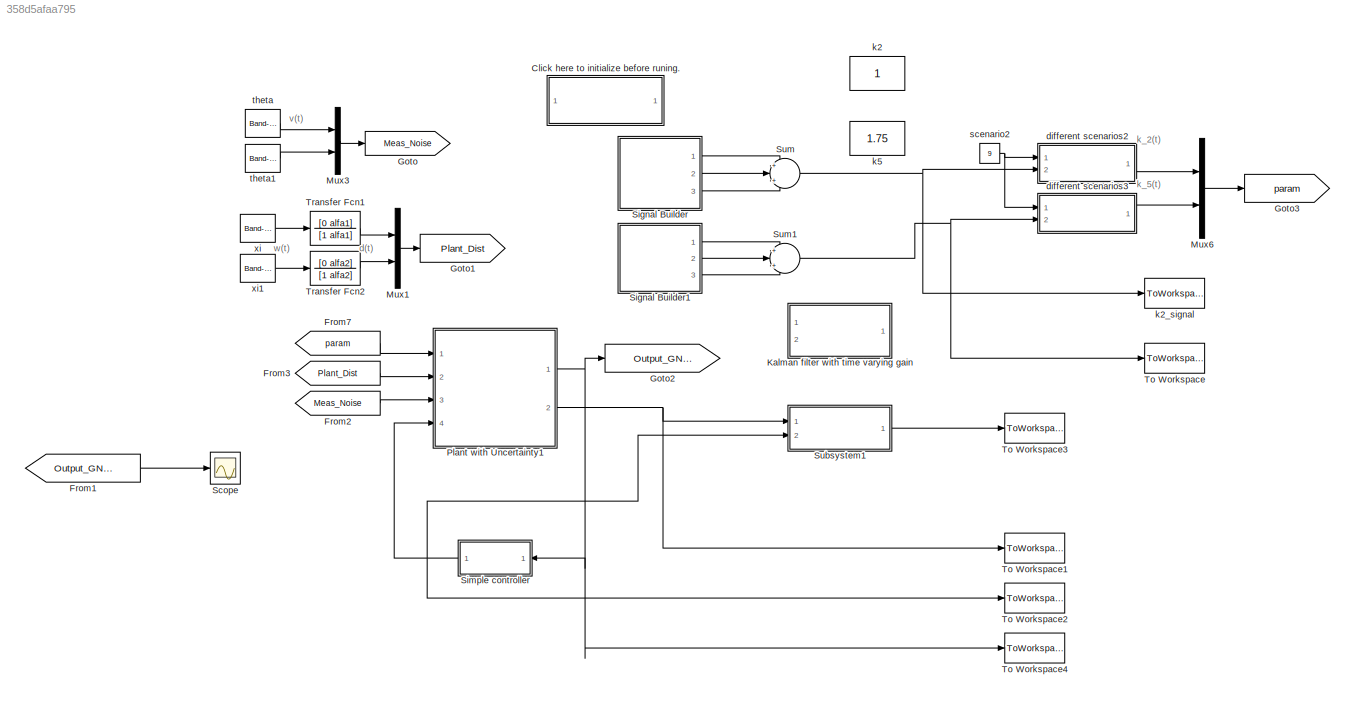
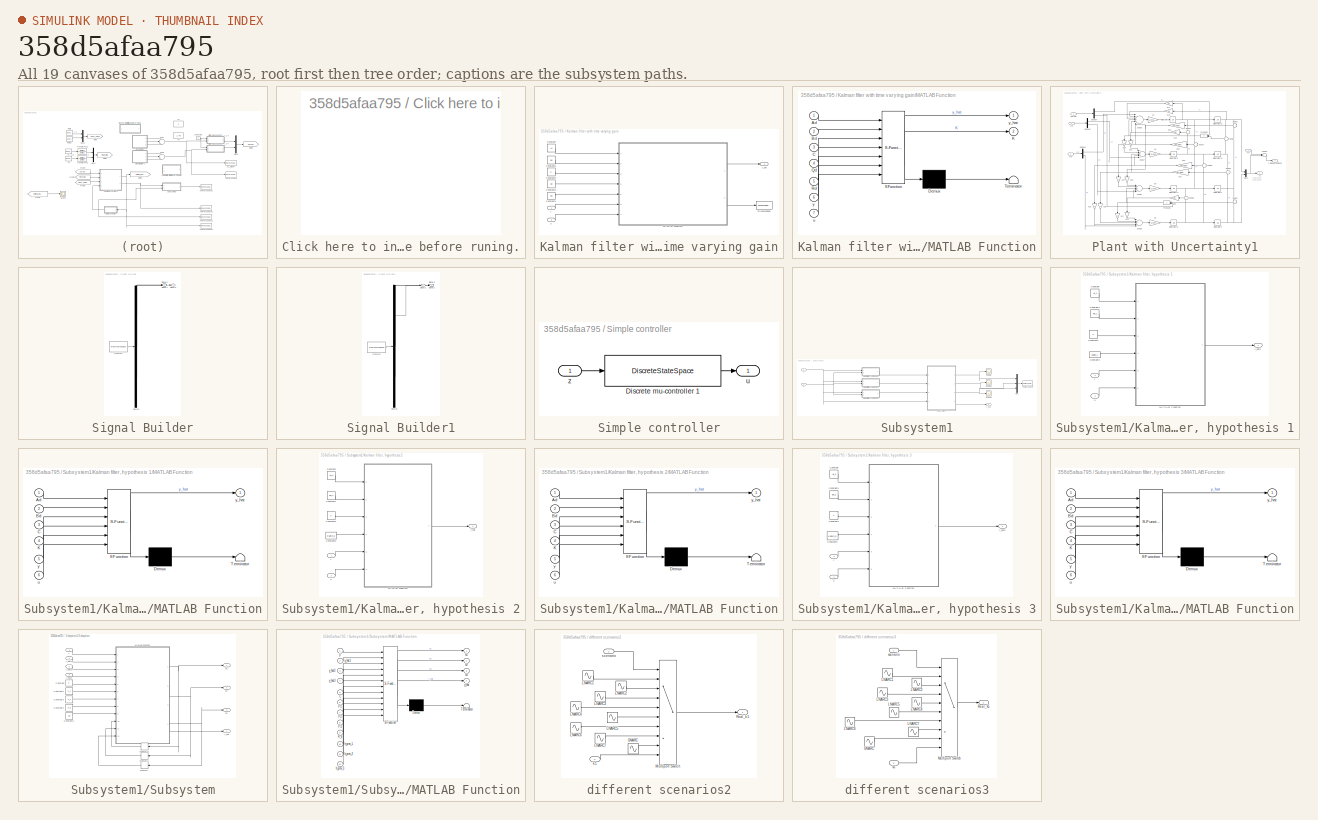
[diagram: thumbnail index - all 19 canvases of the model, root first then tree order]
MODEL slx_358d5afaa795
KIND model
CONFIG AbsTol = auto
CONFIG EnableMultiTasking = on
CONFIG FixedStep = Ts
CONFIG MaxStep = auto
CONFIG MinStep = auto
CONFIG RelTol = 1e-3
CONFIG SampleTimeConstraint = Unconstrained
CONFIG Solver = ode45
CONFIG SolverName = ode45
CONFIG StartTime = 0.0
CONFIG StopTime = 300
BLOCK [SubSystem] Click here to initialize before runing.
  OpenFcn = start_up
  Ports = []
  RequestExecContextInheritance = off
BLOCK [From] From1
  GotoTag = Output_GNARC
BLOCK [From] From2
  GotoTag = Meas_Noise
BLOCK [From] From3
  GotoTag = Plant_Dist
BLOCK [From] From7
  GotoTag = param
BLOCK [Goto] Goto
  GotoTag = Meas_Noise
BLOCK [Goto] Goto1
  GotoTag = Plant_Dist
BLOCK [Goto] Goto2
  GotoTag = Output_GNARC
BLOCK [Goto] Goto3
  GotoTag = param
BLOCK [SubSystem] Kalman filter with time varying gain
  Commented = on
  Ports = [2, 1]
  RequestExecContextInheritance = off
BLOCK [Constant] Kalman filter with time varying gain/Constant
  Value = Ad
BLOCK [Constant] Kalman filter with time varying gain/Constant1
  Value = Bd
BLOCK [Constant] Kalman filter with time varying gain/Constant2
  Value = C
BLOCK [Constant] Kalman filter with time varying gain/Constant3
  Value = Qd
BLOCK [Constant] Kalman filter with time varying gain/Constant4
  Value = Rd
BLOCK [SubSystem] Kalman filter with time varying gain/MATLAB Function
  ErrorFcn = Stateflow.Translate.translate
  PermitHierarchicalResolution = ExplicitOnly
  Ports = [7, 2]
  RequestExecContextInheritance = off
  SFBlockType = MATLAB Function
  SystemSampleTime = Ts
  TreatAsAtomicUnit = on
BLOCK [Demux] Kalman filter with time varying gain/MATLAB Function/ Demux 
  Outputs = 1
  Ports = [1, 1]
BLOCK [S-Function] Kalman filter with time varying gain/MATLAB Function/ SFunction 
  EnableBusSupport = off
  FunctionName = sf_sfun
  PortCounts = [7 3]
  Ports = [7, 3]
  SFcnIsStateOwnerBlock = off
  SFunctionDeploymentMode = off
  Tag = Stateflow S-Function 3
BLOCK [Terminator] Kalman filter with time varying gain/MATLAB Function/ Terminator 
BLOCK [Inport] Kalman filter with time varying gain/MATLAB Function/Ad
  IconDisplay = Port number
BLOCK [Inport] Kalman filter with time varying gain/MATLAB Function/Bd
  IconDisplay = Port number
  Port = 2
BLOCK [Inport] Kalman filter with time varying gain/MATLAB Function/C
  IconDisplay = Port number
  Port = 3
BLOCK [Outport] Kalman filter with time varying gain/MATLAB Function/K
  IconDisplay = Port number
  Port = 2
  VectorParamsAs1DForOutWhenUnconnected = off
BLOCK [Inport] Kalman filter with time varying gain/MATLAB Function/Qd
  IconDisplay = Port number
  Port = 4
BLOCK [Inport] Kalman filter with time varying gain/MATLAB Function/Rd
  IconDisplay = Port number
  Port = 5
BLOCK [Inport] Kalman filter with time varying gain/MATLAB Function/u
  IconDisplay = Port number
  Port = 7
BLOCK [Inport] Kalman filter with time varying gain/MATLAB Function/y
  IconDisplay = Port number
  Port = 6
BLOCK [Outport] Kalman filter with time varying gain/MATLAB Function/y_hat
  IconDisplay = Port number
  VectorParamsAs1DForOutWhenUnconnected = off
BLOCK [ToWorkspace] Kalman filter with time varying gain/To Workspace
  FixptAsFi = on
  MaxDataPoints = inf
  Ports = [1]
  SampleTime = -1
  SaveFormat = Timeseries
  VariableName = Kgain
BLOCK [Inport] Kalman filter with time varying gain/u
  IconDisplay = Port number
  Port = 2
BLOCK [Inport] Kalman filter with time varying gain/y
  IconDisplay = Port number
BLOCK [Outport] Kalman filter with time varying gain/y_hat
  IconDisplay = Port number
  VectorParamsAs1DForOutWhenUnconnected = off
BLOCK [Mux] Mux1
  DisplayOption = bar
  Inputs = 2
  Ports = [2, 1]
BLOCK [Mux] Mux3
  DisplayOption = bar
  Inputs = 2
  Ports = [2, 1]
BLOCK [Mux] Mux6
  DisplayOption = bar
  Inputs = 2
  Ports = [2, 1]
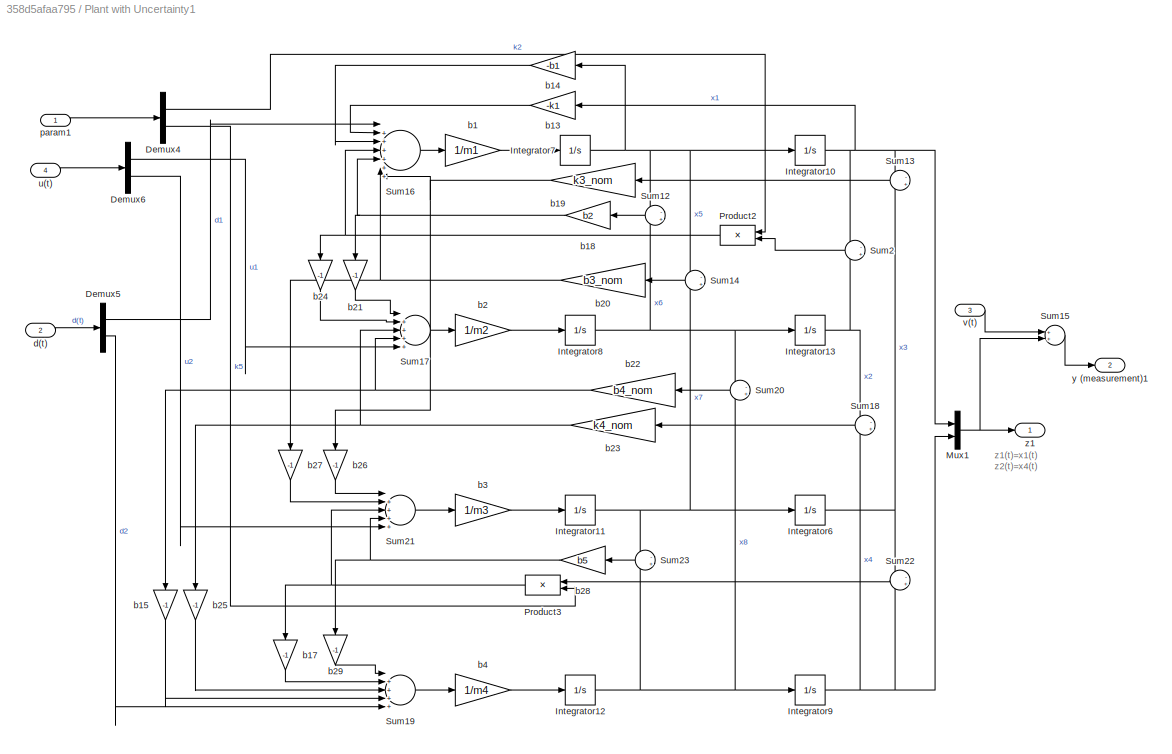
BLOCK [SubSystem] Plant with Uncertainty1
  Ports = [4, 2]
  RequestExecContextInheritance = off
BLOCK [Demux] Plant with Uncertainty1/Demux4
  DisplayOption = bar
  Outputs = 2
  Ports = [1, 2]
BLOCK [Demux] Plant with Uncertainty1/Demux5
  DisplayOption = bar
  Outputs = 2
  Ports = [1, 2]
BLOCK [Demux] Plant with Uncertainty1/Demux6
  DisplayOption = bar
  Outputs = 2
  Ports = [1, 2]
BLOCK [Integrator] Plant with Uncertainty1/Integrator10
  Ports = [1, 1]
BLOCK [Integrator] Plant with Uncertainty1/Integrator11
  Ports = [1, 1]
BLOCK [Integrator] Plant with Uncertainty1/Integrator12
  Ports = [1, 1]
BLOCK [Integrator] Plant with Uncertainty1/Integrator13
  Ports = [1, 1]
BLOCK [Integrator] Plant with Uncertainty1/Integrator6
  Ports = [1, 1]
BLOCK [Integrator] Plant with Uncertainty1/Integrator7
  Ports = [1, 1]
BLOCK [Integrator] Plant with Uncertainty1/Integrator8
  Ports = [1, 1]
BLOCK [Integrator] Plant with Uncertainty1/Integrator9
  Ports = [1, 1]
BLOCK [Mux] Plant with Uncertainty1/Mux1
  DisplayOption = bar
  Inputs = 2
  Ports = [2, 1]
BLOCK [Product] Plant with Uncertainty1/Product2
  Ports = [2, 1]
  RndMeth = Floor
BLOCK [Product] Plant with Uncertainty1/Product3
  Ports = [2, 1]
  RndMeth = Floor
BLOCK [Sum] Plant with Uncertainty1/Sum12
  IconShape = round
  Inputs = -+
  Ports = [2, 1]
BLOCK [Sum] Plant with Uncertainty1/Sum13
  IconShape = round
  Inputs = -+
  Ports = [2, 1]
BLOCK [Sum] Plant with Uncertainty1/Sum14
  IconShape = round
  Inputs = -+
  Ports = [2, 1]
BLOCK [Sum] Plant with Uncertainty1/Sum15
  Ports = [2, 1]
BLOCK [Sum] Plant with Uncertainty1/Sum16
  IconShape = round
  Inputs = |+++++++
  Ports = [7, 1]
BLOCK [Sum] Plant with Uncertainty1/Sum17
  IconShape = round
  Inputs = |+++++
  Ports = [5, 1]
BLOCK [Sum] Plant with Uncertainty1/Sum18
  IconShape = round
  Inputs = -+
  Ports = [2, 1]
BLOCK [Sum] Plant with Uncertainty1/Sum19
  IconShape = round
  Inputs = |+++++
  Ports = [5, 1]
BLOCK [Sum] Plant with Uncertainty1/Sum2
  IconShape = round
  Inputs = -+
  Ports = [2, 1]
BLOCK [Sum] Plant with Uncertainty1/Sum20
  IconShape = round
  Inputs = -+
  Ports = [2, 1]
BLOCK [Sum] Plant with Uncertainty1/Sum21
  IconShape = round
  Inputs = |+++++
  Ports = [5, 1]
BLOCK [Sum] Plant with Uncertainty1/Sum22
  IconShape = round
  Inputs = -+
  Ports = [2, 1]
BLOCK [Sum] Plant with Uncertainty1/Sum23
  IconShape = round
  Inputs = -+
  Ports = [2, 1]
BLOCK [Gain] Plant with Uncertainty1/b1
  Gain = 1/m1
BLOCK [Gain] Plant with Uncertainty1/b13
  Gain = -k1
BLOCK [Gain] Plant with Uncertainty1/b14
  Gain = -b1
BLOCK [Gain] Plant with Uncertainty1/b15
  Gain = -1
BLOCK [Gain] Plant with Uncertainty1/b17
  Gain = -1
BLOCK [Gain] Plant with Uncertainty1/b18
  Gain = b2
BLOCK [Gain] Plant with Uncertainty1/b19
  Gain = k3_nom
BLOCK [Gain] Plant with Uncertainty1/b2
  Gain = 1/m2
BLOCK [Gain] Plant with Uncertainty1/b20
  Gain = b3_nom
BLOCK [Gain] Plant with Uncertainty1/b21
  Gain = -1
BLOCK [Gain] Plant with Uncertainty1/b22
  Gain = b4_nom
BLOCK [Gain] Plant with Uncertainty1/b23
  Gain = k4_nom
BLOCK [Gain] Plant with Uncertainty1/b24
  Gain = -1
BLOCK [Gain] Plant with Uncertainty1/b25
  Gain = -1
BLOCK [Gain] Plant with Uncertainty1/b26
  Gain = -1
BLOCK [Gain] Plant with Uncertainty1/b27
  Gain = -1
BLOCK [Gain] Plant with Uncertainty1/b28
  Gain = b5
BLOCK [Gain] Plant with Uncertainty1/b29
  Gain = -1
BLOCK [Gain] Plant with Uncertainty1/b3
  Gain = 1/m3
BLOCK [Gain] Plant with Uncertainty1/b4
  Gain = 1/m4
BLOCK [Inport] Plant with Uncertainty1/d(t)
  IconDisplay = Port number
  Port = 2
BLOCK [Inport] Plant with Uncertainty1/param1
  IconDisplay = Port number
BLOCK [Inport] Plant with Uncertainty1/u(t)
  IconDisplay = Port number
  Port = 4
BLOCK [Inport] Plant with Uncertainty1/v(t)
  IconDisplay = Port number
  Port = 3
BLOCK [Outport] Plant with Uncertainty1/y (measurement)1
  IconDisplay = Port number
  Port = 2
  VectorParamsAs1DForOutWhenUnconnected = off
BLOCK [Outport] Plant with Uncertainty1/z1
  IconDisplay = Port number
  VectorParamsAs1DForOutWhenUnconnected = off
BLOCK [Scope] Scope
  Floating = off
  NumInputPorts = 1
  Ports = [1]
  ScopeSpecificationString = Simulink.scopes.TimeScopeBlockCfg('CurrentConfiguration', extmgr.ConfigurationSet(extmgr.Configuration('Core','General UI',true),extmgr.Configuration('Core','Source UI',true),extmgr.Configuration('Sources','WiredSimulink',true),extmgr.Configuration('Visuals','Time Domain',true,'SerializedDisplays',{struct('MinYLimReal','-0.94874','MaxYLimReal','0.93385','YLabelReal','','MinYLimMag','0.00000','MaxY...<+1408ch>
BLOCK [SubSystem] Signal Builder
  ClipboardFcn = sigbuilder_block('clipboard');
  CloseFcn = sigbuilder_block('close');
  ContinueFcn = sigbuilder_block('continue');
  CopyFcn = sigbuilder_block('copy');
  DeleteFcn = sigbuilder_block('delete');
  LoadFcn = sigbuilder_block('load');
  MaskHideContents = on
  ModelCloseFcn = sigbuilder_block('modelClose');
  NameChangeFcn = sigbuilder_block('namechange');
  OpenFcn = sigbuilder_block('open',[325.2 97.2 550.8 400.2 ]);
  PauseFcn = sigbuilder_block('pause');
  Ports = [0, 3]
  PreSaveFcn = sigbuilder_block('preSave');
  RequestExecContextInheritance = off
  StartFcn = sigbuilder_block('start');
  StopFcn = sigbuilder_block('stop');
  Tag = STV Subsys
BLOCK [Demux] Signal Builder/Demux
  Outputs = 3
  Ports = [1, 3]
  Tag = STV Demux
BLOCK [FromWorkspace] Signal Builder/FromWs
  SampleTime = 0
  Tag = STV FromWs
  VariableName = tuvar
  ZeroCross = on
BLOCK [Outport] Signal Builder/Signal 1
  IconDisplay = Port number
  Tag = STV Outport
  VectorParamsAs1DForOutWhenUnconnected = off
BLOCK [Outport] Signal Builder/Signal 2
  IconDisplay = Port number
  Port = 2
  Tag = STV Outport
  VectorParamsAs1DForOutWhenUnconnected = off
BLOCK [Outport] Signal Builder/Signal 3
  IconDisplay = Port number
  Port = 3
  Tag = STV Outport
  VectorParamsAs1DForOutWhenUnconnected = off
BLOCK [SubSystem] Signal Builder1
  ClipboardFcn = sigbuilder_block('clipboard');
  CloseFcn = sigbuilder_block('close');
  ContinueFcn = sigbuilder_block('continue');
  CopyFcn = sigbuilder_block('copy');
  DeleteFcn = sigbuilder_block('delete');
  LoadFcn = sigbuilder_block('load');
  MaskHideContents = on
  ModelCloseFcn = sigbuilder_block('modelClose');
  NameChangeFcn = sigbuilder_block('namechange');
  OpenFcn = sigbuilder_block('open',[437.6 199.2 550.4 400 ]);
  PauseFcn = sigbuilder_block('pause');
  Ports = [0, 3]
  PreSaveFcn = sigbuilder_block('preSave');
  RequestExecContextInheritance = off
  StartFcn = sigbuilder_block('start');
  StopFcn = sigbuilder_block('stop');
  Tag = STV Subsys
BLOCK [Demux] Signal Builder1/Demux
  Outputs = 3
  Ports = [1, 3]
  Tag = STV Demux
BLOCK [FromWorkspace] Signal Builder1/FromWs
  SampleTime = 0
  Tag = STV FromWs
  VariableName = tuvar
  ZeroCross = on
BLOCK [Outport] Signal Builder1/Signal 1
  IconDisplay = Port number
  Tag = STV Outport
  VectorParamsAs1DForOutWhenUnconnected = off
BLOCK [Outport] Signal Builder1/Signal 2
  IconDisplay = Port number
  Port = 2
  Tag = STV Outport
  VectorParamsAs1DForOutWhenUnconnected = off
BLOCK [Outport] Signal Builder1/Signal 3
  IconDisplay = Port number
  Port = 3
  Tag = STV Outport
  VectorParamsAs1DForOutWhenUnconnected = off
BLOCK [SubSystem] Simple controller
  Ports = [1, 1]
  RequestExecContextInheritance = off
BLOCK [DiscreteStateSpace] Simple controller/Discrete mu-controller 1
  A = A_D_Re_GNARC
  B = B_D_Re_GNARC
  C = C_D_Re_GNARC
  D = D_D_Re_GNARC
  Description = disp('sss')
  SampleTime = Ts
BLOCK [Outport] Simple controller/u
  IconDisplay = Port number
  VectorParamsAs1DForOutWhenUnconnected = off
BLOCK [Inport] Simple controller/z
  IconDisplay = Port number
BLOCK [SubSystem] Subsystem1
  Ports = [2, 1]
  RequestExecContextInheritance = off
BLOCK [SubSystem] Subsystem1/Kalman filter, hypothesis 1
  Ports = [2, 1]
  RequestExecContextInheritance = off
BLOCK [Constant] Subsystem1/Kalman filter, hypothesis 1/Constant
  Value = Ad_1
BLOCK [Constant] Subsystem1/Kalman filter, hypothesis 1/Constant1
  Value = Bd_1
BLOCK [Constant] Subsystem1/Kalman filter, hypothesis 1/Constant2
  Value = C
BLOCK [Constant] Subsystem1/Kalman filter, hypothesis 1/Constant3
  Value = Kgain_1
BLOCK [SubSystem] Subsystem1/Kalman filter, hypothesis 1/MATLAB Function
  ErrorFcn = Stateflow.Translate.translate
  PermitHierarchicalResolution = ExplicitOnly
  Ports = [6, 1]
  RequestExecContextInheritance = off
  SFBlockType = MATLAB Function
  SystemSampleTime = Ts
  TreatAsAtomicUnit = on
BLOCK [Demux] Subsystem1/Kalman filter, hypothesis 1/MATLAB Function/ Demux 
  Outputs = 1
  Ports = [1, 1]
BLOCK [S-Function] Subsystem1/Kalman filter, hypothesis 1/MATLAB Function/ SFunction 
  EnableBusSupport = off
  FunctionName = sf_sfun
  PortCounts = [6 2]
  Ports = [6, 2]
  SFcnIsStateOwnerBlock = off
  SFunctionDeploymentMode = off
  Tag = Stateflow S-Function 8
BLOCK [Terminator] Subsystem1/Kalman filter, hypothesis 1/MATLAB Function/ Terminator 
BLOCK [Inport] Subsystem1/Kalman filter, hypothesis 1/MATLAB Function/Ad
  IconDisplay = Port number
BLOCK [Inport] Subsystem1/Kalman filter, hypothesis 1/MATLAB Function/Bd
  IconDisplay = Port number
  Port = 2
BLOCK [Inport] Subsystem1/Kalman filter, hypothesis 1/MATLAB Function/C
  IconDisplay = Port number
  Port = 3
BLOCK [Inport] Subsystem1/Kalman filter, hypothesis 1/MATLAB Function/K
  IconDisplay = Port number
  Port = 4
BLOCK [Inport] Subsystem1/Kalman filter, hypothesis 1/MATLAB Function/u
  IconDisplay = Port number
  Port = 6
BLOCK [Inport] Subsystem1/Kalman filter, hypothesis 1/MATLAB Function/y
  IconDisplay = Port number
  Port = 5
BLOCK [Outport] Subsystem1/Kalman filter, hypothesis 1/MATLAB Function/y_hat
  IconDisplay = Port number
  VectorParamsAs1DForOutWhenUnconnected = off
BLOCK [Inport] Subsystem1/Kalman filter, hypothesis 1/u
  IconDisplay = Port number
  Port = 2
BLOCK [Inport] Subsystem1/Kalman filter, hypothesis 1/y
  IconDisplay = Port number
BLOCK [Outport] Subsystem1/Kalman filter, hypothesis 1/y_hat1
  IconDisplay = Port number
  VectorParamsAs1DForOutWhenUnconnected = off
BLOCK [SubSystem] Subsystem1/Kalman filter, hypothesis 2
  Ports = [2, 1]
  RequestExecContextInheritance = off
BLOCK [Constant] Subsystem1/Kalman filter, hypothesis 2/Constant
  Value = Ad_2
BLOCK [Constant] Subsystem1/Kalman filter, hypothesis 2/Constant1
  Value = Bd_2
BLOCK [Constant] Subsystem1/Kalman filter, hypothesis 2/Constant2
  Value = C
BLOCK [Constant] Subsystem1/Kalman filter, hypothesis 2/Constant3
  Value = Kgain_2
BLOCK [SubSystem] Subsystem1/Kalman filter, hypothesis 2/MATLAB Function
  ErrorFcn = Stateflow.Translate.translate
  PermitHierarchicalResolution = ExplicitOnly
  Ports = [6, 1]
  RequestExecContextInheritance = off
  SFBlockType = MATLAB Function
  SystemSampleTime = Ts
  TreatAsAtomicUnit = on
BLOCK [Demux] Subsystem1/Kalman filter, hypothesis 2/MATLAB Function/ Demux 
  Outputs = 1
  Ports = [1, 1]
BLOCK [S-Function] Subsystem1/Kalman filter, hypothesis 2/MATLAB Function/ SFunction 
  EnableBusSupport = off
  FunctionName = sf_sfun
  PortCounts = [6 2]
  Ports = [6, 2]
  SFcnIsStateOwnerBlock = off
  SFunctionDeploymentMode = off
  Tag = Stateflow S-Function 7
BLOCK [Terminator] Subsystem1/Kalman filter, hypothesis 2/MATLAB Function/ Terminator 
BLOCK [Inport] Subsystem1/Kalman filter, hypothesis 2/MATLAB Function/Ad
  IconDisplay = Port number
BLOCK [Inport] Subsystem1/Kalman filter, hypothesis 2/MATLAB Function/Bd
  IconDisplay = Port number
  Port = 2
BLOCK [Inport] Subsystem1/Kalman filter, hypothesis 2/MATLAB Function/C
  IconDisplay = Port number
  Port = 3
BLOCK [Inport] Subsystem1/Kalman filter, hypothesis 2/MATLAB Function/K
  IconDisplay = Port number
  Port = 4
BLOCK [Inport] Subsystem1/Kalman filter, hypothesis 2/MATLAB Function/u
  IconDisplay = Port number
  Port = 6
BLOCK [Inport] Subsystem1/Kalman filter, hypothesis 2/MATLAB Function/y
  IconDisplay = Port number
  Port = 5
BLOCK [Outport] Subsystem1/Kalman filter, hypothesis 2/MATLAB Function/y_hat
  IconDisplay = Port number
  VectorParamsAs1DForOutWhenUnconnected = off
BLOCK [Inport] Subsystem1/Kalman filter, hypothesis 2/u
  IconDisplay = Port number
  Port = 2
BLOCK [Inport] Subsystem1/Kalman filter, hypothesis 2/y
  IconDisplay = Port number
BLOCK [Outport] Subsystem1/Kalman filter, hypothesis 2/y_hat
  IconDisplay = Port number
  VectorParamsAs1DForOutWhenUnconnected = off
BLOCK [SubSystem] Subsystem1/Kalman filter, hypothesis 3
  Ports = [2, 1]
  RequestExecContextInheritance = off
BLOCK [Constant] Subsystem1/Kalman filter, hypothesis 3/Constant
  Value = Ad_3
BLOCK [Constant] Subsystem1/Kalman filter, hypothesis 3/Constant1
  Value = Bd_3
BLOCK [Constant] Subsystem1/Kalman filter, hypothesis 3/Constant2
  Value = C
BLOCK [Constant] Subsystem1/Kalman filter, hypothesis 3/Constant3
  Value = Kgain_3
BLOCK [SubSystem] Subsystem1/Kalman filter, hypothesis 3/MATLAB Function
  ErrorFcn = Stateflow.Translate.translate
  PermitHierarchicalResolution = ExplicitOnly
  Ports = [6, 1]
  RequestExecContextInheritance = off
  SFBlockType = MATLAB Function
  SystemSampleTime = Ts
  TreatAsAtomicUnit = on
BLOCK [Demux] Subsystem1/Kalman filter, hypothesis 3/MATLAB Function/ Demux 
  Outputs = 1
  Ports = [1, 1]
BLOCK [S-Function] Subsystem1/Kalman filter, hypothesis 3/MATLAB Function/ SFunction 
  EnableBusSupport = off
  FunctionName = sf_sfun
  PortCounts = [6 2]
  Ports = [6, 2]
  SFcnIsStateOwnerBlock = off
  SFunctionDeploymentMode = off
  Tag = Stateflow S-Function 10
BLOCK [Terminator] Subsystem1/Kalman filter, hypothesis 3/MATLAB Function/ Terminator 
BLOCK [Inport] Subsystem1/Kalman filter, hypothesis 3/MATLAB Function/Ad
  IconDisplay = Port number
BLOCK [Inport] Subsystem1/Kalman filter, hypothesis 3/MATLAB Function/Bd
  IconDisplay = Port number
  Port = 2
BLOCK [Inport] Subsystem1/Kalman filter, hypothesis 3/MATLAB Function/C
  IconDisplay = Port number
  Port = 3
BLOCK [Inport] Subsystem1/Kalman filter, hypothesis 3/MATLAB Function/K
  IconDisplay = Port number
  Port = 4
BLOCK [Inport] Subsystem1/Kalman filter, hypothesis 3/MATLAB Function/u
  IconDisplay = Port number
  Port = 6
BLOCK [Inport] Subsystem1/Kalman filter, hypothesis 3/MATLAB Function/y
  IconDisplay = Port number
  Port = 5
BLOCK [Outport] Subsystem1/Kalman filter, hypothesis 3/MATLAB Function/y_hat
  IconDisplay = Port number
  VectorParamsAs1DForOutWhenUnconnected = off
BLOCK [Inport] Subsystem1/Kalman filter, hypothesis 3/u
  IconDisplay = Port number
  Port = 2
BLOCK [Inport] Subsystem1/Kalman filter, hypothesis 3/y
  IconDisplay = Port number
BLOCK [Outport] Subsystem1/Kalman filter, hypothesis 3/y_hat3
  IconDisplay = Port number
  VectorParamsAs1DForOutWhenUnconnected = off
BLOCK [Mux] Subsystem1/Mux
  DisplayOption = bar
  Inputs = 3
  Ports = [3, 1]
BLOCK [Scope] Subsystem1/Scope
  Floating = off
  NumInputPorts = 1
  Ports = [1]
  ScopeSpecificationString = Simulink.scopes.TimeScopeBlockCfg('CurrentConfiguration', extmgr.ConfigurationSet(extmgr.Configuration('Core','General UI',true),extmgr.Configuration('Core','Source UI',true),extmgr.Configuration('Sources','WiredSimulink',true,'DataLoggingVariableName','ScopeData1'),extmgr.Configuration('Visuals','Time Domain',true,'SerializedDisplays',{struct('MinYLimReal','0.000001','MaxYLimReal','0.000097','YLa...<+1456ch>
BLOCK [Scope] Subsystem1/Scope1
  Floating = off
  NumInputPorts = 1
  Ports = [1]
  ScopeSpecificationString = Simulink.scopes.TimeScopeBlockCfg('CurrentConfiguration', extmgr.ConfigurationSet(extmgr.Configuration('Core','General UI',true),extmgr.Configuration('Core','Source UI',true),extmgr.Configuration('Sources','WiredSimulink',true,'DataLoggingVariableName','ScopeData2'),extmgr.Configuration('Visuals','Time Domain',true,'SerializedDisplays',{struct('MinYLimReal','0.00074','MaxYLimReal','1.04637','YLabe...<+1448ch>
BLOCK [Scope] Subsystem1/Scope2
  Floating = off
  NumInputPorts = 1
  Ports = [1]
  ScopeSpecificationString = Simulink.scopes.TimeScopeBlockCfg('CurrentConfiguration', extmgr.ConfigurationSet(extmgr.Configuration('Core','General UI',true),extmgr.Configuration('Core','Source UI',true),extmgr.Configuration('Sources','WiredSimulink',true,'DataLoggingVariableName','ScopeData3'),extmgr.Configuration('Visuals','Time Domain',true,'SerializedDisplays',{struct('MinYLimReal','-0.00073','MaxYLimReal','0.00078','YLab...<+1453ch>
BLOCK [SubSystem] Subsystem1/Subsystem
  Ports = [4, 4]
  RequestExecContextInheritance = off
BLOCK [Constant] Subsystem1/Subsystem/Constant
  Value = C
BLOCK [Constant] Subsystem1/Subsystem/Constant1
  Value = Rd
BLOCK [Constant] Subsystem1/Subsystem/Constant2
  Value = P_1
BLOCK [Constant] Subsystem1/Subsystem/Constant3
  Value = P_2
BLOCK [Constant] Subsystem1/Subsystem/Constant4
  Value = P_3
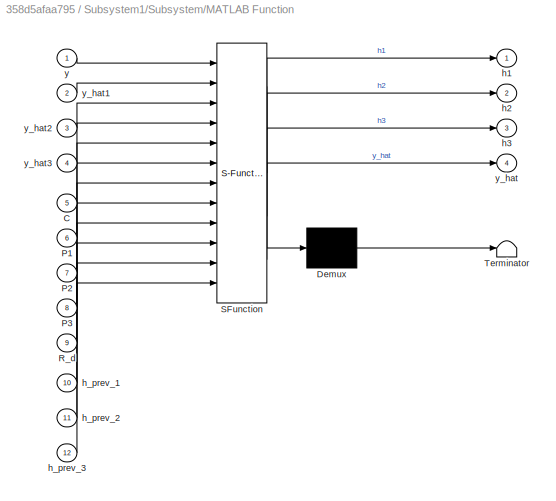
BLOCK [SubSystem] Subsystem1/Subsystem/MATLAB Function
  ErrorFcn = Stateflow.Translate.translate
  PermitHierarchicalResolution = ExplicitOnly
  Ports = [12, 4]
  RequestExecContextInheritance = off
  SFBlockType = MATLAB Function
  SystemSampleTime = Ts
  TreatAsAtomicUnit = on
BLOCK [Demux] Subsystem1/Subsystem/MATLAB Function/ Demux 
  Outputs = 1
  Ports = [1, 1]
BLOCK [S-Function] Subsystem1/Subsystem/MATLAB Function/ SFunction 
  EnableBusSupport = off
  FunctionName = sf_sfun
  PortCounts = [12 5]
  Ports = [12, 5]
  SFcnIsStateOwnerBlock = off
  SFunctionDeploymentMode = off
  Tag = Stateflow S-Function 11
BLOCK [Terminator] Subsystem1/Subsystem/MATLAB Function/ Terminator 
BLOCK [Inport] Subsystem1/Subsystem/MATLAB Function/C
  IconDisplay = Port number
  Port = 5
BLOCK [Inport] Subsystem1/Subsystem/MATLAB Function/P1
  IconDisplay = Port number
  Port = 6
BLOCK [Inport] Subsystem1/Subsystem/MATLAB Function/P2
  IconDisplay = Port number
  Port = 7
BLOCK [Inport] Subsystem1/Subsystem/MATLAB Function/P3
  IconDisplay = Port number
  Port = 8
BLOCK [Inport] Subsystem1/Subsystem/MATLAB Function/R_d
  IconDisplay = Port number
  Port = 9
BLOCK [Outport] Subsystem1/Subsystem/MATLAB Function/h1
  IconDisplay = Port number
BLOCK [Outport] Subsystem1/Subsystem/MATLAB Function/h2
  IconDisplay = Port number
  Port = 2
  VectorParamsAs1DForOutWhenUnconnected = off
BLOCK [Outport] Subsystem1/Subsystem/MATLAB Function/h3
  IconDisplay = Port number
  Port = 3
  VectorParamsAs1DForOutWhenUnconnected = off
BLOCK [Inport] Subsystem1/Subsystem/MATLAB Function/h_prev_1
  IconDisplay = Port number
  Port = 10
BLOCK [Inport] Subsystem1/Subsystem/MATLAB Function/h_prev_2
  IconDisplay = Port number
  Port = 11
BLOCK [Inport] Subsystem1/Subsystem/MATLAB Function/h_prev_3
  IconDisplay = Port number
  Port = 12
BLOCK [Inport] Subsystem1/Subsystem/MATLAB Function/y
  IconDisplay = Port number
BLOCK [Outport] Subsystem1/Subsystem/MATLAB Function/y_hat
  IconDisplay = Port number
  Port = 4
  VectorParamsAs1DForOutWhenUnconnected = off
BLOCK [Inport] Subsystem1/Subsystem/MATLAB Function/y_hat1
  IconDisplay = Port number
  Port = 2
BLOCK [Inport] Subsystem1/Subsystem/MATLAB Function/y_hat2
  IconDisplay = Port number
  Port = 3
BLOCK [Inport] Subsystem1/Subsystem/MATLAB Function/y_hat3
  IconDisplay = Port number
  Port = 4
BLOCK [Memory] Subsystem1/Subsystem/Memory
  InheritSampleTime = on
  InitialCondition = 1/3
BLOCK [Memory] Subsystem1/Subsystem/Memory1
  InheritSampleTime = on
  InitialCondition = 1/3
BLOCK [Memory] Subsystem1/Subsystem/Memory2
  InheritSampleTime = on
  InitialCondition = 1/3
BLOCK [Outport] Subsystem1/Subsystem/h1
  IconDisplay = Port number
BLOCK [Outport] Subsystem1/Subsystem/h2
  IconDisplay = Port number
  Port = 2
BLOCK [Outport] Subsystem1/Subsystem/h3
  IconDisplay = Port number
  Port = 3
BLOCK [Inport] Subsystem1/Subsystem/y
  IconDisplay = Port number
  Port = 4
BLOCK [Outport] Subsystem1/Subsystem/y_hat
  IconDisplay = Port number
  Port = 4
  VectorParamsAs1DForOutWhenUnconnected = off
BLOCK [Inport] Subsystem1/Subsystem/y_hat1
  IconDisplay = Port number
BLOCK [Inport] Subsystem1/Subsystem/y_hat2
  IconDisplay = Port number
  Port = 2
BLOCK [Inport] Subsystem1/Subsystem/y_hat3
  IconDisplay = Port number
  Port = 3
BLOCK [ToWorkspace] Subsystem1/To Workspace
  FixptAsFi = on
  MaxDataPoints = inf
  Ports = [1]
  SampleTime = -1
  SaveFormat = Timeseries
  VariableName = hyps
BLOCK [Inport] Subsystem1/u
  IconDisplay = Port number
  Port = 2
BLOCK [Inport] Subsystem1/y
  IconDisplay = Port number
BLOCK [Outport] Subsystem1/y_hat
  IconDisplay = Port number
  VectorParamsAs1DForOutWhenUnconnected = off
BLOCK [Sum] Sum
  IconShape = round
  InputSameDT = off
  Inputs = +|+|+
  OutDataTypeStr = Inherit: Inherit via internal rule
  Ports = [3, 1]
  SaturateOnIntegerOverflow = off
BLOCK [Sum] Sum1
  IconShape = round
  InputSameDT = off
  Inputs = +|+|+
  OutDataTypeStr = Inherit: Inherit via internal rule
  Ports = [3, 1]
  SaturateOnIntegerOverflow = off
BLOCK [ToWorkspace] To Workspace
  FixptAsFi = on
  MaxDataPoints = inf
  Ports = [1]
  SampleTime = -1
  SaveFormat = Timeseries
  VariableName = k5_signal
BLOCK [ToWorkspace] To Workspace1
  FixptAsFi = on
  MaxDataPoints = inf
  Ports = [1]
  SampleTime = Ts
  SaveFormat = Timeseries
  VariableName = measured_y
BLOCK [ToWorkspace] To Workspace2
  FixptAsFi = on
  MaxDataPoints = inf
  Ports = [1]
  SampleTime = -1
  SaveFormat = Timeseries
  VariableName = u_control
BLOCK [ToWorkspace] To Workspace3
  FixptAsFi = on
  MaxDataPoints = inf
  Ports = [1]
  SampleTime = -1
  SaveFormat = Timeseries
  VariableName = y_hat
BLOCK [ToWorkspace] To Workspace4
  FixptAsFi = on
  MaxDataPoints = inf
  Ports = [1]
  SampleTime = Ts
  SaveFormat = Timeseries
  VariableName = true_y
BLOCK [TransferFcn] Transfer Fcn1
  Denominator = [1 alfa1]
  Numerator = [0 alfa1]
BLOCK [TransferFcn] Transfer Fcn2
  Denominator = [1 alfa2]
  Numerator = [0 alfa2]
BLOCK [SubSystem] different scenarios2
  Ports = [2, 1]
  RequestExecContextInheritance = off
BLOCK [Sin] different scenarios2/GNARC
  Amplitude = .75
  Bias = 1
  Frequency = 2*pi/700
  Phase = -pi/2
  Ports = [0, 1]
  SampleTime = 0
BLOCK [Sin] different scenarios2/LNARC1
  Amplitude = .875
  Bias = 1.625
  Frequency = 2*pi/700
  Phase = -pi/2
  Ports = [0, 1]
  SampleTime = 0
BLOCK [Sin] different scenarios2/LNARC2
  Amplitude = .55/2
  Bias = .775
  Frequency = 2*pi/700
  Phase = -pi/2
  Ports = [0, 1]
  SampleTime = 0
BLOCK [Sin] different scenarios2/LNARC3
  Amplitude = .75/2
  Bias = 1.4250
  Frequency = 2*pi/700
  Phase = -pi/2
  Ports = [0, 1]
  SampleTime = 0
BLOCK [Sin] different scenarios2/LNARC4
  Amplitude = .15/2
  Bias = .325
  Frequency = 2*pi/700
  Phase = -pi/2
  Ports = [0, 1]
  SampleTime = 0
BLOCK [Sin] different scenarios2/LNARC5
  Amplitude = .15
  Bias = .55
  Frequency = 2*pi/700
  Phase = -pi/2
  Ports = [0, 1]
  SampleTime = 0
BLOCK [Sin] different scenarios2/LNARC6
  Amplitude = .45/2
  Bias = .925
  Frequency = 2*pi/700
  Phase = -pi/2
  Ports = [0, 1]
  SampleTime = 0
BLOCK [Sin] different scenarios2/LNARC7
  Amplitude = .30
  Bias = 1.45
  Frequency = 2*pi/700
  Phase = -pi/2
  Ports = [0, 1]
  SampleTime = 0
BLOCK [MultiPortSwitch] different scenarios2/Multiport Switch
  InputSameDT = off
  Inputs = 9
  Ports = [10, 1]
  SaturateOnIntegerOverflow = off
BLOCK [Outport] different scenarios2/Real_k1
  IconDisplay = Port number
  VectorParamsAs1DForOutWhenUnconnected = off
BLOCK [Inport] different scenarios2/k1
  IconDisplay = Port number
  Port = 2
BLOCK [Inport] different scenarios2/scenario
  IconDisplay = Port number
BLOCK [SubSystem] different scenarios3
  Ports = [2, 1]
  RequestExecContextInheritance = off
BLOCK [Sin] different scenarios3/GNARC
  Amplitude = 1.6
  Bias = 1.8
  Frequency = 2*pi/700
  Phase = -pi/2
  Ports = [0, 1]
  SampleTime = 0
BLOCK [Sin] different scenarios3/LNARC1
  Amplitude = .8
  Bias = 1.7
  Frequency = 2*pi/700
  Phase = -3*pi/2
  Ports = [0, 1]
  SampleTime = 0
BLOCK [Sin] different scenarios3/LNARC2
  Amplitude = .8
  Bias = 2.6
  Frequency = 2*pi/700
  Phase = -pi/2
  Ports = [0, 1]
  SampleTime = 0
BLOCK [Sin] different scenarios3/LNARC3
  Amplitude = .8
  Bias = 2.6
  Frequency = 2*pi/700
  Phase = -pi/2
  Ports = [0, 1]
  SampleTime = 0
BLOCK [Sin] different scenarios3/LNARC4
  Amplitude = .8
  Bias = 1
  Frequency = 2*pi/700
  Phase = -pi/2
  Ports = [0, 1]
  SampleTime = 0
BLOCK [Sin] different scenarios3/LNARC5
  Amplitude = .8
  Bias = 1
  Frequency = 2*pi/700
  Phase = -pi/2
  Ports = [0, 1]
  SampleTime = 0
BLOCK [Sin] different scenarios3/LNARC6
  Amplitude = .8
  Bias = 1
  Frequency = 2*pi/700
  Phase = -pi/2
  Ports = [0, 1]
  SampleTime = 0
BLOCK [Sin] different scenarios3/LNARC7
  Amplitude = .8
  Bias = 1
  Frequency = 2*pi/700
  Phase = -pi/2
  Ports = [0, 1]
  SampleTime = 0
BLOCK [MultiPortSwitch] different scenarios3/Multiport Switch
  InputSameDT = off
  Inputs = 9
  Ports = [10, 1]
  SaturateOnIntegerOverflow = off
BLOCK [Outport] different scenarios3/Real_k5
  IconDisplay = Port number
  VectorParamsAs1DForOutWhenUnconnected = off
BLOCK [Inport] different scenarios3/k5
  IconDisplay = Port number
  Port = 2
BLOCK [Inport] different scenarios3/scenario
  IconDisplay = Port number
BLOCK [Constant] k2
  Commented = on
BLOCK [ToWorkspace] k2_signal
  FixptAsFi = on
  MaxDataPoints = inf
  Ports = [1]
  SampleTime = -1
  SaveFormat = Timeseries
  VariableName = k2_signal
BLOCK [Constant] k5
  Commented = on
  Value = 1.75
BLOCK [Constant] scenario2
  Value = 9
BLOCK [Reference] theta  REF=simulink/Sources/Band-Limited
White Noise
  Ports = [0, 1]
  SourceBlock = simulink/Sources/Band-Limited\nWhite Noise
  SourceProductBaseCode = SL
  SourceProductName = Simulink
  SourceType = Band-Limited White Noise.
BLOCK [Reference] theta1  REF=simulink/Sources/Band-Limited
White Noise
  Ports = [0, 1]
  SourceBlock = simulink/Sources/Band-Limited\nWhite Noise
  SourceProductBaseCode = SL
  SourceProductName = Simulink
  SourceType = Band-Limited White Noise.
BLOCK [Reference] xi  REF=simulink/Sources/Band-Limited
White Noise
  Ports = [0, 1]
  SourceBlock = simulink/Sources/Band-Limited\nWhite Noise
  SourceProductBaseCode = SL
  SourceProductName = Simulink
  SourceType = Band-Limited White Noise.
BLOCK [Reference] xi1  REF=simulink/Sources/Band-Limited
White Noise
  Ports = [0, 1]
  SourceBlock = simulink/Sources/Band-Limited\nWhite Noise
  SourceProductBaseCode = SL
  SourceProductName = Simulink
  SourceType = Band-Limited White Noise.
ANNOTATION (root): d(t)
ANNOTATION (root): k_2(t)
ANNOTATION (root): k_5(t)
ANNOTATION (root): v(t)
ANNOTATION (root): w(t)
ANNOTATION Plant with Uncertainty1: z1(t)=x1(t) z2(t)=x4(t)
LINE From1:1 -> Scope:1
LINE From2:1 -> Plant with Uncertainty1:3
LINE From3:1 -> Plant with Uncertainty1:2
LINE From7:1 -> Plant with Uncertainty1:1
LINE Kalman filter with time varying gain/Constant1:1 -> Kalman filter with time varying gain/MATLAB Function:2
LINE Kalman filter with time varying gain/Constant2:1 -> Kalman filter with time varying gain/MATLAB Function:3
LINE Kalman filter with time varying gain/Constant3:1 -> Kalman filter with time varying gain/MATLAB Function:4
LINE Kalman filter with time varying gain/Constant4:1 -> Kalman filter with time varying gain/MATLAB Function:5
LINE Kalman filter with time varying gain/Constant:1 -> Kalman filter with time varying gain/MATLAB Function:1
LINE Kalman filter with time varying gain/MATLAB Function:1 -> Kalman filter with time varying gain/y_hat:1
LINE Kalman filter with time varying gain/MATLAB Function:2 -> Kalman filter with time varying gain/To Workspace:1
LINE Kalman filter with time varying gain/u:1 -> Kalman filter with time varying gain/MATLAB Function:7
LINE Kalman filter with time varying gain/y:1 -> Kalman filter with time varying gain/MATLAB Function:6
LINE Mux1:1 -> Goto1:1
LINE Mux3:1 -> Goto:1
LINE Mux6:1 -> Goto3:1
LINE Plant with Uncertainty1/Demux4:1 -> Plant with Uncertainty1/Product2:1
LINE Plant with Uncertainty1/Demux4:2 -> Plant with Uncertainty1/Product3:2
LINE Plant with Uncertainty1/Demux5:1 -> Plant with Uncertainty1/Sum16:1
LINE Plant with Uncertainty1/Demux5:2 -> Plant with Uncertainty1/Sum19:5
LINE Plant with Uncertainty1/Demux6:1 -> Plant with Uncertainty1/Sum17:5
LINE Plant with Uncertainty1/Demux6:2 -> Plant with Uncertainty1/Sum21:5
NET Plant with Uncertainty1/Integrator10:1 -> Plant with Uncertainty1/Mux1:1, Plant with Uncertainty1/Sum13:1, Plant with Uncertainty1/Sum2:1, Plant with Uncertainty1/b13:1
NET Plant with Uncertainty1/Integrator11:1 -> Plant with Uncertainty1/Integrator6:1, Plant with Uncertainty1/Sum14:2, Plant with Uncertainty1/Sum23:1
NET Plant with Uncertainty1/Integrator12:1 -> Plant with Uncertainty1/Integrator9:1, Plant with Uncertainty1/Sum20:2, Plant with Uncertainty1/Sum23:2
NET Plant with Uncertainty1/Integrator13:1 -> Plant with Uncertainty1/Sum18:1, Plant with Uncertainty1/Sum2:2
NET Plant with Uncertainty1/Integrator6:1 -> Plant with Uncertainty1/Sum13:2, Plant with Uncertainty1/Sum22:1
NET Plant with Uncertainty1/Integrator7:1 -> Plant with Uncertainty1/Integrator10:1, Plant with Uncertainty1/Sum12:1, Plant with Uncertainty1/Sum14:1, Plant with Uncertainty1/b14:1
NET Plant with Uncertainty1/Integrator8:1 -> Plant with Uncertainty1/Integrator13:1, Plant with Uncertainty1/Sum12:2, Plant with Uncertainty1/Sum20:1
NET Plant with Uncertainty1/Integrator9:1 -> Plant with Uncertainty1/Mux1:2, Plant with Uncertainty1/Sum18:2, Plant with Uncertainty1/Sum22:2
NET Plant with Uncertainty1/Mux1:1 -> Plant with Uncertainty1/Sum15:2, Plant with Uncertainty1/z1:1
NET Plant with Uncertainty1/Product2:1 -> Plant with Uncertainty1/Sum16:4, Plant with Uncertainty1/b24:1
NET Plant with Uncertainty1/Product3:1 -> Plant with Uncertainty1/Sum21:3, Plant with Uncertainty1/b17:1
LINE Plant with Uncertainty1/Sum12:1 -> Plant with Uncertainty1/b18:1
LINE Plant with Uncertainty1/Sum13:1 -> Plant with Uncertainty1/b19:1
LINE Plant with Uncertainty1/Sum14:1 -> Plant with Uncertainty1/b20:1
LINE Plant with Uncertainty1/Sum15:1 -> Plant with Uncertainty1/y (measurement)1:1
LINE Plant with Uncertainty1/Sum16:1 -> Plant with Uncertainty1/b1:1
LINE Plant with Uncertainty1/Sum17:1 -> Plant with Uncertainty1/b2:1
LINE Plant with Uncertainty1/Sum18:1 -> Plant with Uncertainty1/b23:1
LINE Plant with Uncertainty1/Sum19:1 -> Plant with Uncertainty1/b4:1
LINE Plant with Uncertainty1/Sum20:1 -> Plant with Uncertainty1/b22:1
LINE Plant with Uncertainty1/Sum21:1 -> Plant with Uncertainty1/b3:1
LINE Plant with Uncertainty1/Sum22:1 -> Plant with Uncertainty1/Product3:1
LINE Plant with Uncertainty1/Sum23:1 -> Plant with Uncertainty1/b28:1
LINE Plant with Uncertainty1/Sum2:1 -> Plant with Uncertainty1/Product2:2
LINE Plant with Uncertainty1/b13:1 -> Plant with Uncertainty1/Sum16:2
LINE Plant with Uncertainty1/b14:1 -> Plant with Uncertainty1/Sum16:3
LINE Plant with Uncertainty1/b15:1 -> Plant with Uncertainty1/Sum19:4
LINE Plant with Uncertainty1/b17:1 -> Plant with Uncertainty1/Sum19:2
NET Plant with Uncertainty1/b18:1 -> Plant with Uncertainty1/Sum16:5, Plant with Uncertainty1/b21:1
NET Plant with Uncertainty1/b19:1 -> Plant with Uncertainty1/Sum16:7, Plant with Uncertainty1/b26:1
LINE Plant with Uncertainty1/b1:1 -> Plant with Uncertainty1/Integrator7:1
NET Plant with Uncertainty1/b20:1 -> Plant with Uncertainty1/Sum16:6, Plant with Uncertainty1/b27:1
LINE Plant with Uncertainty1/b21:1 -> Plant with Uncertainty1/Sum17:1
NET Plant with Uncertainty1/b22:1 -> Plant with Uncertainty1/Sum17:4, Plant with Uncertainty1/b15:1
NET Plant with Uncertainty1/b23:1 -> Plant with Uncertainty1/Sum17:3, Plant with Uncertainty1/b25:1
LINE Plant with Uncertainty1/b24:1 -> Plant with Uncertainty1/Sum17:2
LINE Plant with Uncertainty1/b25:1 -> Plant with Uncertainty1/Sum19:3
LINE Plant with Uncertainty1/b26:1 -> Plant with Uncertainty1/Sum21:1
LINE Plant with Uncertainty1/b27:1 -> Plant with Uncertainty1/Sum21:2
NET Plant with Uncertainty1/b28:1 -> Plant with Uncertainty1/Sum21:4, Plant with Uncertainty1/b29:1
LINE Plant with Uncertainty1/b29:1 -> Plant with Uncertainty1/Sum19:1
LINE Plant with Uncertainty1/b2:1 -> Plant with Uncertainty1/Integrator8:1
LINE Plant with Uncertainty1/b3:1 -> Plant with Uncertainty1/Integrator11:1
LINE Plant with Uncertainty1/b4:1 -> Plant with Uncertainty1/Integrator12:1
LINE Plant with Uncertainty1/d(t):1 -> Plant with Uncertainty1/Demux5:1
LINE Plant with Uncertainty1/param1:1 -> Plant with Uncertainty1/Demux4:1
LINE Plant with Uncertainty1/u(t):1 -> Plant with Uncertainty1/Demux6:1
LINE Plant with Uncertainty1/v(t):1 -> Plant with Uncertainty1/Sum15:1
NET Plant with Uncertainty1:1 -> Goto2:1, Simple controller:1, To Workspace4:1
NET Plant with Uncertainty1:2 -> Subsystem1:1, To Workspace1:1
LINE Signal Builder1:1 -> Sum1:1
LINE Signal Builder1:2 -> Sum1:2
LINE Signal Builder1:3 -> Sum1:3
LINE Signal Builder:1 -> Sum:1
LINE Signal Builder:2 -> Sum:2
LINE Signal Builder:3 -> Sum:3
LINE Simple controller/Discrete mu-controller 1:1 -> Simple controller/u:1
LINE Simple controller/z:1 -> Simple controller/Discrete mu-controller 1:1
NET Simple controller:1 -> Plant with Uncertainty1:4, Subsystem1:2, To Workspace2:1
LINE Subsystem1/Kalman filter, hypothesis 1/Constant1:1 -> Subsystem1/Kalman filter, hypothesis 1/MATLAB Function:2
LINE Subsystem1/Kalman filter, hypothesis 1/Constant2:1 -> Subsystem1/Kalman filter, hypothesis 1/MATLAB Function:3
LINE Subsystem1/Kalman filter, hypothesis 1/Constant3:1 -> Subsystem1/Kalman filter, hypothesis 1/MATLAB Function:4
LINE Subsystem1/Kalman filter, hypothesis 1/Constant:1 -> Subsystem1/Kalman filter, hypothesis 1/MATLAB Function:1
LINE Subsystem1/Kalman filter, hypothesis 1/MATLAB Function:1 -> Subsystem1/Kalman filter, hypothesis 1/y_hat1:1
LINE Subsystem1/Kalman filter, hypothesis 1/u:1 -> Subsystem1/Kalman filter, hypothesis 1/MATLAB Function:6
LINE Subsystem1/Kalman filter, hypothesis 1/y:1 -> Subsystem1/Kalman filter, hypothesis 1/MATLAB Function:5
LINE Subsystem1/Kalman filter, hypothesis 1:1 -> Subsystem1/Subsystem:1
LINE Subsystem1/Kalman filter, hypothesis 2/Constant1:1 -> Subsystem1/Kalman filter, hypothesis 2/MATLAB Function:2
LINE Subsystem1/Kalman filter, hypothesis 2/Constant2:1 -> Subsystem1/Kalman filter, hypothesis 2/MATLAB Function:3
LINE Subsystem1/Kalman filter, hypothesis 2/Constant3:1 -> Subsystem1/Kalman filter, hypothesis 2/MATLAB Function:4
LINE Subsystem1/Kalman filter, hypothesis 2/Constant:1 -> Subsystem1/Kalman filter, hypothesis 2/MATLAB Function:1
LINE Subsystem1/Kalman filter, hypothesis 2/MATLAB Function:1 -> Subsystem1/Kalman filter, hypothesis 2/y_hat:1
LINE Subsystem1/Kalman filter, hypothesis 2/u:1 -> Subsystem1/Kalman filter, hypothesis 2/MATLAB Function:6
LINE Subsystem1/Kalman filter, hypothesis 2/y:1 -> Subsystem1/Kalman filter, hypothesis 2/MATLAB Function:5
LINE Subsystem1/Kalman filter, hypothesis 2:1 -> Subsystem1/Subsystem:2
LINE Subsystem1/Kalman filter, hypothesis 3/Constant1:1 -> Subsystem1/Kalman filter, hypothesis 3/MATLAB Function:2
LINE Subsystem1/Kalman filter, hypothesis 3/Constant2:1 -> Subsystem1/Kalman filter, hypothesis 3/MATLAB Function:3
LINE Subsystem1/Kalman filter, hypothesis 3/Constant3:1 -> Subsystem1/Kalman filter, hypothesis 3/MATLAB Function:4
LINE Subsystem1/Kalman filter, hypothesis 3/Constant:1 -> Subsystem1/Kalman filter, hypothesis 3/MATLAB Function:1
LINE Subsystem1/Kalman filter, hypothesis 3/MATLAB Function:1 -> Subsystem1/Kalman filter, hypothesis 3/y_hat3:1
LINE Subsystem1/Kalman filter, hypothesis 3/u:1 -> Subsystem1/Kalman filter, hypothesis 3/MATLAB Function:6
LINE Subsystem1/Kalman filter, hypothesis 3/y:1 -> Subsystem1/Kalman filter, hypothesis 3/MATLAB Function:5
LINE Subsystem1/Kalman filter, hypothesis 3:1 -> Subsystem1/Subsystem:3
LINE Subsystem1/Mux:1 -> Subsystem1/To Workspace:1
LINE Subsystem1/Subsystem/Constant1:1 -> Subsystem1/Subsystem/MATLAB Function:9
LINE Subsystem1/Subsystem/Constant2:1 -> Subsystem1/Subsystem/MATLAB Function:6
LINE Subsystem1/Subsystem/Constant3:1 -> Subsystem1/Subsystem/MATLAB Function:7
LINE Subsystem1/Subsystem/Constant4:1 -> Subsystem1/Subsystem/MATLAB Function:8
LINE Subsystem1/Subsystem/Constant:1 -> Subsystem1/Subsystem/MATLAB Function:5
NET Subsystem1/Subsystem/MATLAB Function:1 -> Subsystem1/Subsystem/Memory2:1, Subsystem1/Subsystem/h1:1
NET Subsystem1/Subsystem/MATLAB Function:2 -> Subsystem1/Subsystem/Memory1:1, Subsystem1/Subsystem/h2:1
NET Subsystem1/Subsystem/MATLAB Function:3 -> Subsystem1/Subsystem/Memory:1, Subsystem1/Subsystem/h3:1
LINE Subsystem1/Subsystem/MATLAB Function:4 -> Subsystem1/Subsystem/y_hat:1
LINE Subsystem1/Subsystem/Memory1:1 -> Subsystem1/Subsystem/MATLAB Function:11
LINE Subsystem1/Subsystem/Memory2:1 -> Subsystem1/Subsystem/MATLAB Function:10
LINE Subsystem1/Subsystem/Memory:1 -> Subsystem1/Subsystem/MATLAB Function:12
LINE Subsystem1/Subsystem/y:1 -> Subsystem1/Subsystem/MATLAB Function:1
LINE Subsystem1/Subsystem/y_hat1:1 -> Subsystem1/Subsystem/MATLAB Function:2
LINE Subsystem1/Subsystem/y_hat2:1 -> Subsystem1/Subsystem/MATLAB Function:3
LINE Subsystem1/Subsystem/y_hat3:1 -> Subsystem1/Subsystem/MATLAB Function:4
NET Subsystem1/Subsystem:1 -> Subsystem1/Mux:1, Subsystem1/Scope:1
NET Subsystem1/Subsystem:2 -> Subsystem1/Mux:2, Subsystem1/Scope1:1
NET Subsystem1/Subsystem:3 -> Subsystem1/Mux:3, Subsystem1/Scope2:1
LINE Subsystem1/Subsystem:4 -> Subsystem1/y_hat:1
NET Subsystem1/u:1 -> Subsystem1/Kalman filter, hypothesis 1:2, Subsystem1/Kalman filter, hypothesis 2:2, Subsystem1/Kalman filter, hypothesis 3:2
NET Subsystem1/y:1 -> Subsystem1/Kalman filter, hypothesis 1:1, Subsystem1/Kalman filter, hypothesis 2:1, Subsystem1/Kalman filter, hypothesis 3:1, Subsystem1/Subsystem:4
LINE Subsystem1:1 -> To Workspace3:1
NET Sum1:1 -> To Workspace:1, different scenarios3:2
NET Sum:1 -> different scenarios2:2, k2_signal:1
LINE Transfer Fcn1:1 -> Mux1:1
LINE Transfer Fcn2:1 -> Mux1:2
LINE different scenarios2/GNARC:1 -> different scenarios2/Multiport Switch:9
LINE different scenarios2/LNARC1:1 -> different scenarios2/Multiport Switch:2
LINE different scenarios2/LNARC2:1 -> different scenarios2/Multiport Switch:3
LINE different scenarios2/LNARC3:1 -> different scenarios2/Multiport Switch:4
LINE different scenarios2/LNARC4:1 -> different scenarios2/Multiport Switch:5
LINE different scenarios2/LNARC5:1 -> different scenarios2/Multiport Switch:6
LINE different scenarios2/LNARC6:1 -> different scenarios2/Multiport Switch:7
LINE different scenarios2/LNARC7:1 -> different scenarios2/Multiport Switch:8
LINE different scenarios2/Multiport Switch:1 -> different scenarios2/Real_k1:1
LINE different scenarios2/k1:1 -> different scenarios2/Multiport Switch:10
LINE different scenarios2/scenario:1 -> different scenarios2/Multiport Switch:1
LINE different scenarios2:1 -> Mux6:1
LINE different scenarios3/GNARC:1 -> different scenarios3/Multiport Switch:9
LINE different scenarios3/LNARC1:1 -> different scenarios3/Multiport Switch:2
LINE different scenarios3/LNARC2:1 -> different scenarios3/Multiport Switch:3
LINE different scenarios3/LNARC3:1 -> different scenarios3/Multiport Switch:4
LINE different scenarios3/LNARC4:1 -> different scenarios3/Multiport Switch:5
LINE different scenarios3/LNARC5:1 -> different scenarios3/Multiport Switch:6
LINE different scenarios3/LNARC6:1 -> different scenarios3/Multiport Switch:7
LINE different scenarios3/LNARC7:1 -> different scenarios3/Multiport Switch:8
LINE different scenarios3/Multiport Switch:1 -> different scenarios3/Real_k5:1
LINE different scenarios3/k5:1 -> different scenarios3/Multiport Switch:10
LINE different scenarios3/scenario:1 -> different scenarios3/Multiport Switch:1
LINE different scenarios3:1 -> Mux6:2
NET scenario2:1 -> different scenarios2:1, different scenarios3:1
LINE theta1:1 -> Mux3:2
LINE theta:1 -> Mux3:1
LINE xi1:1 -> Transfer Fcn2:1
LINE xi:1 -> Transfer Fcn1:1
note: NET lines group one-source signal fan-out (src -> all destinations, sorted); 1:1 wires keep LINE
CHART Kalman filter with time varying gain/MATLAB Function states=1 transitions=1
  STATE_LABEL 'eML_blk_kernel()'
  STATE_LABEL 'SCRIPT:\nfunction [y_hat, K] = kalman(Ad,Bd,C,Qd,Rd, y, u)\n% Discrete time Kalman filter \n\npersistent P_ x                 % error covariance and state\n\nif isempty(P_)\n    P_ = zeros(10,10);          % error covariance initialization\nend\n\nif isempty(x)\n    x = zeros(10,1);            % state initialization\nend\n\nK = P_*transpose(C)*inv(C*P_*transpose(C)+Rd);                     % Kalman gain matrix\n...<+400ch>'
CHART Subsystem1/Kalman filter, hypothesis 2/MATLAB Function states=1 transitions=1
  STATE_LABEL 'eML_blk_kernel()'
  STATE_LABEL 'SCRIPT:\nfunction y_hat = kalman(Ad,Bd,C,K, y, u)\n\npersistent x_bar             \n\nif isempty(x_bar)\n    x_bar = zeros(10,1);           % state initialization\nend\n\nx_hat = x_bar + K*(y-C*x_bar);                                        % state estimate update\nx_bar = Ad*x_hat+Bd*u;                                                % state estimate propagation\n\ny_hat = C*x_hat;\n\nend\n'  <repeated x3 — deduplicated; at blocks: MATLAB Function>
CHART Subsystem1/Kalman filter, hypothesis 1/MATLAB Function states=1 transitions=1
  STATE_LABEL 'eML_blk_kernel()'
CHART Subsystem1/Kalman filter, hypothesis 3/MATLAB Function states=1 transitions=1
  STATE_LABEL 'eML_blk_kernel()'
CHART Subsystem1/Subsystem/MATLAB Function states=1 transitions=1
  STATE_LABEL 'eML_blk_kernel()'
  STATE_LABEL "SCRIPT:\nfunction [h1, h2, h3, y_hat] = dyn_hyp(y, y_hat1,y_hat2, y_hat3, C, P1, P2, P3, R_d, h_prev_1, h_prev_2, h_prev_3)\n\ny_tilde1 = y - y_hat1;\ny_tilde2 = y - y_hat2;\ny_tilde3 = y - y_hat3;\n\nS_h1 = C*P1*C' + R_d;\nS_h2 = C*P2*C' + R_d;\nS_h3 = C*P3*C' + R_d;\n\nh = zeros(1,3);\nhyp1 = (exp(-0.5*y_tilde1'/(S_h1)*y_tilde1)/(sqrt(4*pi^2*det(S_h1))));\nhyp2 = (exp(-0.5*y_tilde2'/(S_h2)*y_tilde2)/(sqrt(4*...<+549ch>"
